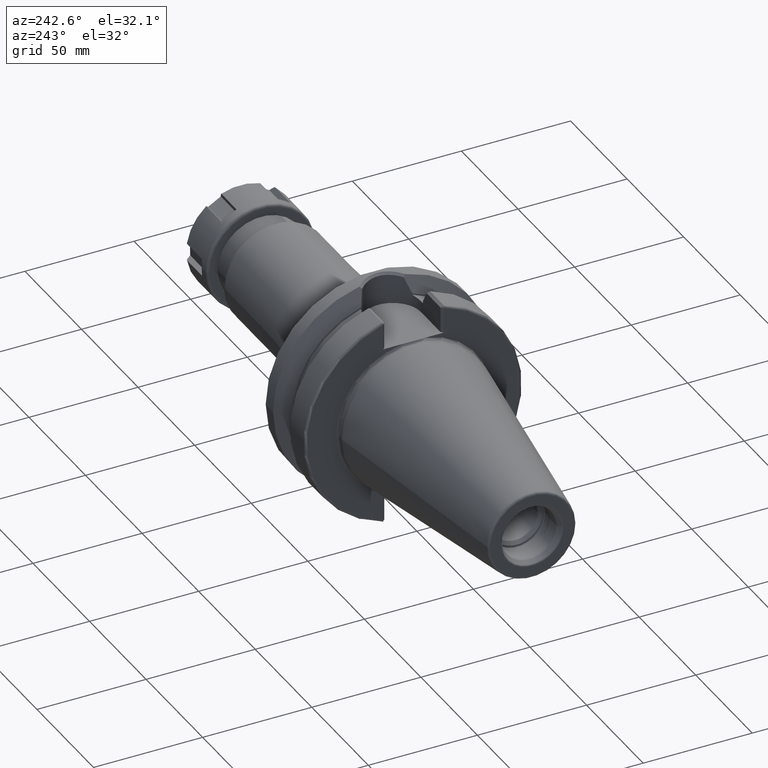
[diagram: clean part render]
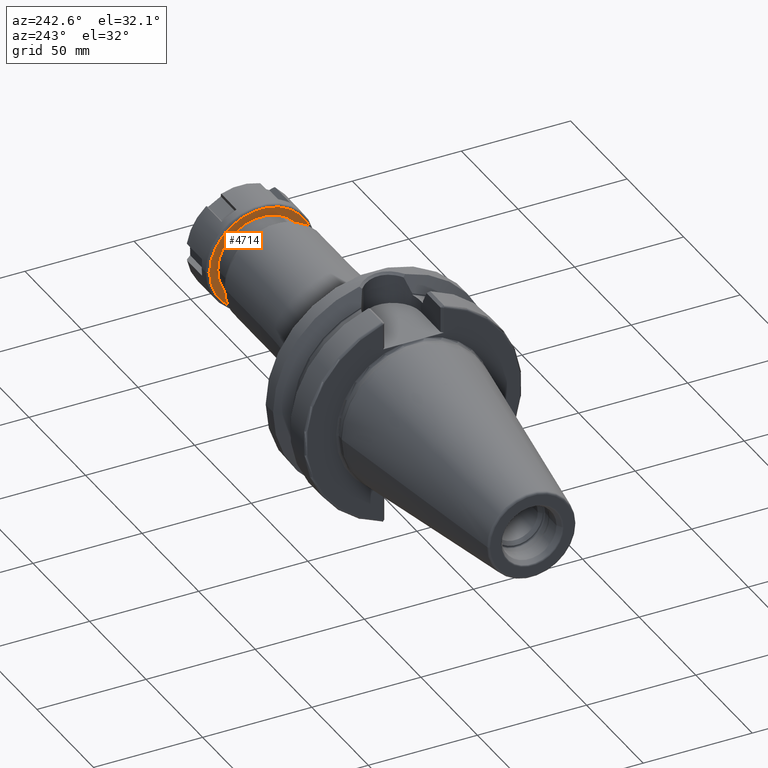
[diagram: same view with one face highlighted and labeled with its STEP entity id]
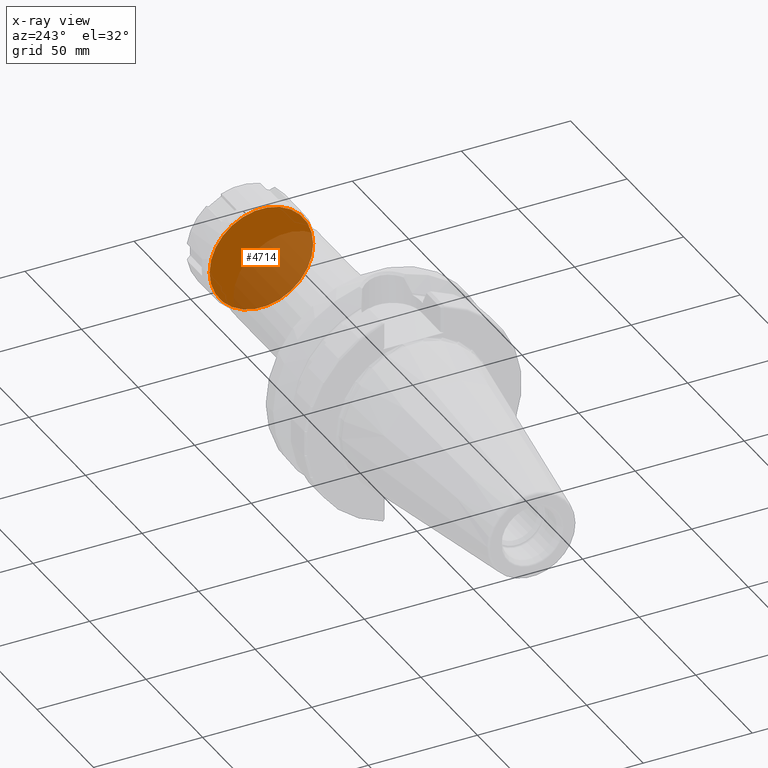
[diagram: x-ray of the same camera — body ghosted, the highlighted face saturated]
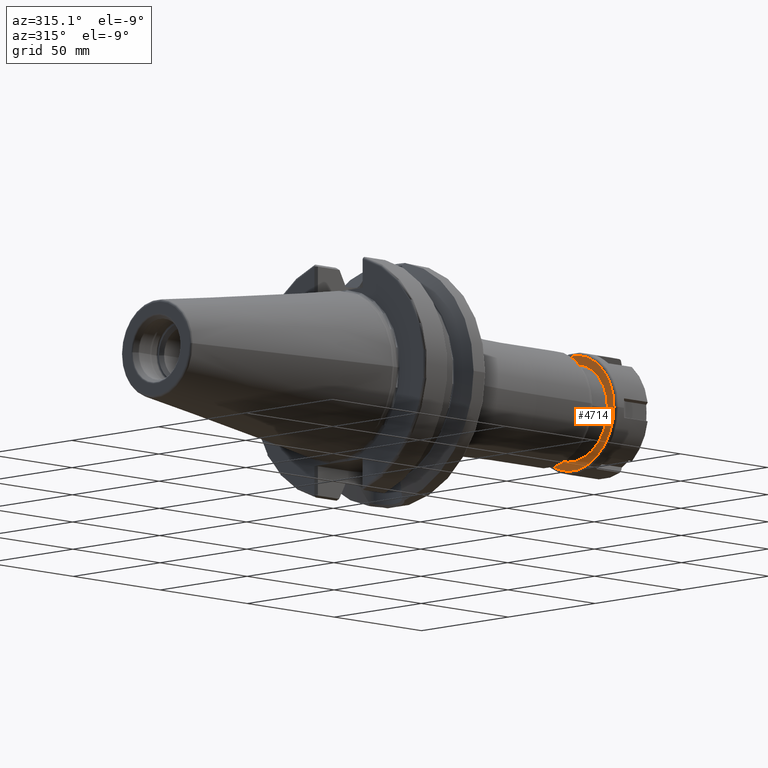
[diagram: same view with one face highlighted and labeled with its STEP entity id]
A machine part, auxiliary view. The second image highlights one B-rep face of the part: STEP entity #4714.
The next image is the same camera in x-ray: the body ghosted, the highlighted face saturated — about 51% of this face is hidden behind the body in this view.
A second angle (auxiliary view) of the same face is appended — the face is thin or edge-on in the first view.
In plain terms, the highlighted planar face has unit normal (1, 0, 0).
Its self-contained STEP definition (entity closure, byte-faithful):
#4007=CARTESIAN_POINT('',(0.E0,0.E0,0.E0));
#4008=DIRECTION('',(-1.E0,0.E0,0.E0));
#4009=DIRECTION('',(0.E0,1.E0,0.E0));
#4010=AXIS2_PLACEMENT_3D('',#4007,#4008,#4009);
#4012=CARTESIAN_POINT('',(0.E0,0.E0,0.E0));
#4013=DIRECTION('',(-1.E0,0.E0,0.E0));
#4014=DIRECTION('',(0.E0,-1.E0,0.E0));
#4015=AXIS2_PLACEMENT_3D('',#4012,#4013,#4014);
#4156=CARTESIAN_POINT('',(0.E0,2.375E1,0.E0));
#4157=CARTESIAN_POINT('',(0.E0,-2.375E1,0.E0));
#4158=VERTEX_POINT('',#4156);
#4159=VERTEX_POINT('',#4157);
#4704=CARTESIAN_POINT('',(0.E0,0.E0,0.E0));
#4705=DIRECTION('',(1.E0,0.E0,0.E0));
#4706=DIRECTION('',(0.E0,-1.E0,0.E0));
#4707=AXIS2_PLACEMENT_3D('',#4704,#4705,#4706);
#4708=PLANE('',#4707);
#4710=ORIENTED_EDGE('',*,*,#4709,.F.);
#4711=ORIENTED_EDGE('',*,*,#4694,.F.);
#4712=EDGE_LOOP('',(#4710,#4711));
#4713=FACE_OUTER_BOUND('',#4712,.F.);
#4714=ADVANCED_FACE('',(#4713),#4708,.F.);
#4011=CIRCLE('',#4010,2.375E1);
#4016=CIRCLE('',#4015,2.375E1);
#4694=EDGE_CURVE('',#4159,#4158,#4016,.T.);
#4709=EDGE_CURVE('',#4158,#4159,#4011,.T.);